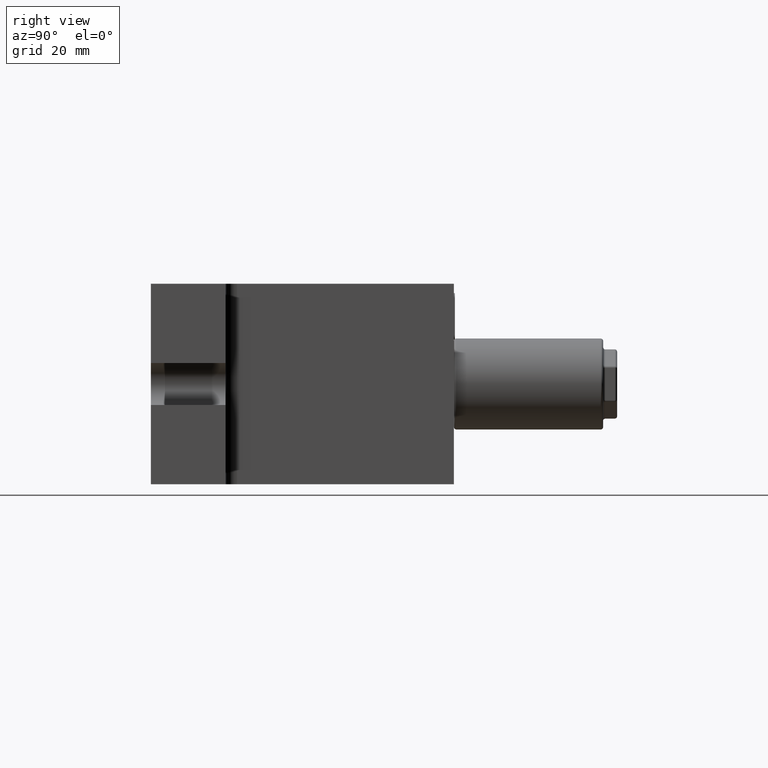
[diagram: clean part render]
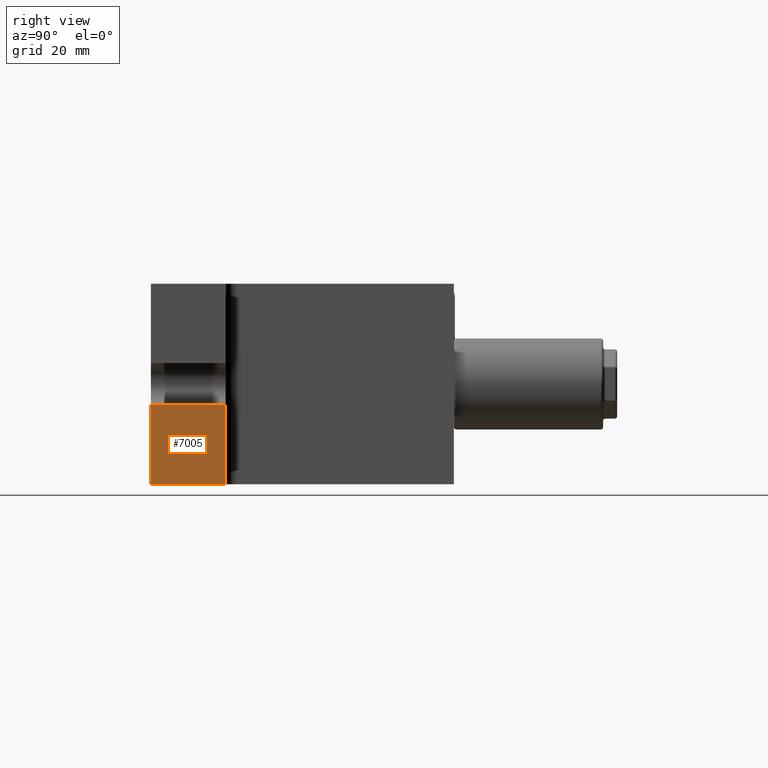
[diagram: same view with one face highlighted and labeled with its STEP entity id]
A machine part, right view. The second image highlights one B-rep face of the part: STEP entity #7005.
In plain terms, the highlighted planar face has unit normal (-1, 0, 0).
Its self-contained STEP definition (entity closure, byte-faithful):
#220 = CARTESIAN_POINT ( 'NONE',  ( 56.50000000000000000, -32.50000000000000000, -21.50000000000000000 ) ) ;
#452 = EDGE_CURVE ( 'NONE', #6986, #1897, #17947, .T. ) ;
#783 = LINE ( 'NONE', #4439, #19618 ) ;
#1779 = DIRECTION ( 'NONE',  ( 0.0000000000000000000, 1.000000000000000000, 0.0000000000000000000 ) ) ;
#1897 = VERTEX_POINT ( 'NONE', #19480 ) ;
#2648 = CARTESIAN_POINT ( 'NONE',  ( 56.50000000000000000, -32.50000000000000000, -21.50000000000000000 ) ) ;
#3595 = CARTESIAN_POINT ( 'NONE',  ( 56.50000000000000000, -32.50000000000000000, -4.500000000000000000 ) ) ;
#4124 = VERTEX_POINT ( 'NONE', #3595 ) ;
#4439 = CARTESIAN_POINT ( 'NONE',  ( 56.50000000000000000, -32.50000000000000000, 21.50000000000000000 ) ) ;
#4730 = EDGE_CURVE ( 'NONE', #4124, #8793, #16521, .T. ) ;
#6538 = CARTESIAN_POINT ( 'NONE',  ( 56.50000000000000000, -32.50000000000000000, -4.500000000000000000 ) ) ;
#6631 = DIRECTION ( 'NONE',  ( 0.0000000000000000000, 0.0000000000000000000, 1.000000000000000000 ) ) ;
#6975 = DIRECTION ( 'NONE',  ( 0.0000000000000000000, 0.0000000000000000000, 1.000000000000000000 ) ) ;
#6986 = VERTEX_POINT ( 'NONE', #220 ) ;
#7005 = ADVANCED_FACE ( 'NONE', ( #8960 ), #8369, .F. ) ;
#8369 = PLANE ( 'NONE',  #14754 ) ;
#8793 = VERTEX_POINT ( 'NONE', #9128 ) ;
#8960 = FACE_OUTER_BOUND ( 'NONE', #14535, .T. ) ;
#9128 = CARTESIAN_POINT ( 'NONE',  ( 56.50000000000000000, -16.50000000000000000, -4.500000000000000000 ) ) ;
#9245 = DIRECTION ( 'NONE',  ( 0.0000000000000000000, 1.000000000000000000, 0.0000000000000000000 ) ) ;
#11552 = ORIENTED_EDGE ( 'NONE', *, *, #15552, .T. ) ;
#13288 = ORIENTED_EDGE ( 'NONE', *, *, #4730, .F. ) ;
#13782 = VECTOR ( 'NONE', #9245, 1000.000000000000000 ) ;
#14535 = EDGE_LOOP ( 'NONE', ( #11552, #13288, #17819, #15888 ) ) ;
#14754 = AXIS2_PLACEMENT_3D ( 'NONE', #18104, #19905, #6631 ) ;
#15223 = LINE ( 'NONE', #15238, #18608 ) ;
#15238 = CARTESIAN_POINT ( 'NONE',  ( 56.50000000000000000, -16.50000000000000000, -21.50000000000000000 ) ) ;
#15552 = EDGE_CURVE ( 'NONE', #1897, #8793, #15223, .T. ) ;
#15626 = EDGE_CURVE ( 'NONE', #4124, #6986, #783, .T. ) ;
#15888 = ORIENTED_EDGE ( 'NONE', *, *, #452, .T. ) ;
#16521 = LINE ( 'NONE', #6538, #18822 ) ;
#17624 = DIRECTION ( 'NONE',  ( 0.0000000000000000000, 0.0000000000000000000, -1.000000000000000000 ) ) ;
#17819 = ORIENTED_EDGE ( 'NONE', *, *, #15626, .T. ) ;
#17947 = LINE ( 'NONE', #2648, #13782 ) ;
#18104 = CARTESIAN_POINT ( 'NONE',  ( 56.50000000000000000, -32.50000000000000000, 21.50000000000000000 ) ) ;
#18608 = VECTOR ( 'NONE', #6975, 1000.000000000000000 ) ;
#18822 = VECTOR ( 'NONE', #1779, 1000.000000000000000 ) ;
#19480 = CARTESIAN_POINT ( 'NONE',  ( 56.50000000000000000, -16.50000000000000000, -21.50000000000000000 ) ) ;
#19618 = VECTOR ( 'NONE', #17624, 1000.000000000000000 ) ;
#19905 = DIRECTION ( 'NONE',  ( -1.000000000000000000, 0.0000000000000000000, 0.0000000000000000000 ) ) ;